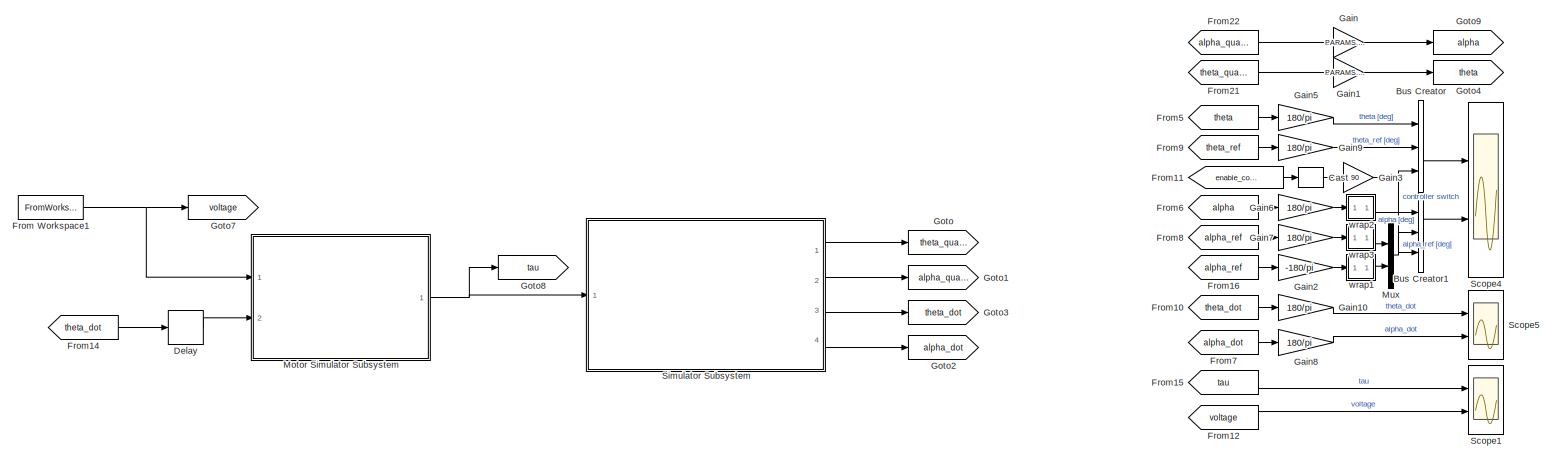
[diagram: root canvas - part 1/2, full width, middle band]
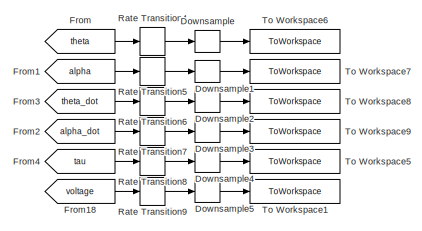
[diagram: root canvas - part 2/2, bottom right region]
MODEL slx_57cc78712e20
KIND model
CONFIG AbsTol = auto
CONFIG EnableMultiTasking = off
CONFIG FixedStep = dt
CONFIG MaxStep = auto
CONFIG MinStep = auto
CONFIG RelTol = 1e-3
CONFIG SampleTimeConstraint = Unconstrained
CONFIG Solver = ode1
CONFIG SolverName = ode1
CONFIG StartTime = 0.0
CONFIG StopTime = T_sim
BLOCK [BusCreator] Bus Creator
  Commented = on
  DisplayOption = bar
  InheritFromInputs = on
  Inputs = 3
  Ports = [3, 1]
BLOCK [BusCreator] Bus Creator1
  Commented = on
  DisplayOption = bar
  InheritFromInputs = on
  Inputs = 3
  Ports = [3, 1]
BLOCK [DataTypeConversion] Cast
  Commented = on
  OutDataTypeStr = double
  RndMeth = Floor
  SaturateOnIntegerOverflow = off
BLOCK [Delay] Delay
  DelayLength = 1
  InitialCondition = PARAMS.th_dot_0
  InputPortMap = u0
  Ports = [1, 1]
BLOCK [DownSample] Downsample
  InputProcessing = Elements as channels (sample based)
  N = ceil((2e-3)/dt)
  RateOptions = Allow multirate processing
BLOCK [DownSample] Downsample1
  InputProcessing = Elements as channels (sample based)
  N = ceil((2e-3)/dt)
  RateOptions = Allow multirate processing
BLOCK [DownSample] Downsample2
  InputProcessing = Elements as channels (sample based)
  N = ceil((2e-3)/dt)
  RateOptions = Allow multirate processing
BLOCK [DownSample] Downsample3
  InputProcessing = Elements as channels (sample based)
  N = ceil((2e-3)/dt)
  RateOptions = Allow multirate processing
BLOCK [DownSample] Downsample4
  InputProcessing = Elements as channels (sample based)
  N = ceil((2e-3)/dt)
  RateOptions = Allow multirate processing
BLOCK [DownSample] Downsample5
  InputProcessing = Elements as channels (sample based)
  N = ceil((2e-3)/dt)
  RateOptions = Allow multirate processing
BLOCK [From] From
  GotoTag = theta
BLOCK [FromWorkspace] From Workspace1
  SampleTime = 0
  VariableName = simin.voltage
  ZeroCross = on
BLOCK [From] From1
  GotoTag = alpha
BLOCK [From] From10
  Commented = on
  GotoTag = theta_dot
BLOCK [From] From11
  Commented = on
  GotoTag = enable_controller
BLOCK [From] From12
  Commented = on
  GotoTag = voltage
BLOCK [From] From14
  GotoTag = theta_dot
BLOCK [From] From15
  Commented = on
  GotoTag = tau
BLOCK [From] From16
  Commented = on
  GotoTag = alpha_ref
BLOCK [From] From18
  GotoTag = voltage
BLOCK [From] From2
  GotoTag = alpha_dot
BLOCK [From] From21
  GotoTag = theta_quant
BLOCK [From] From22
  GotoTag = alpha_quant
BLOCK [From] From3
  GotoTag = theta_dot
BLOCK [From] From4
  GotoTag = tau
BLOCK [From] From5
  Commented = on
  GotoTag = theta
BLOCK [From] From6
  Commented = on
  GotoTag = alpha
BLOCK [From] From7
  Commented = on
  GotoTag = alpha_dot
BLOCK [From] From8
  Commented = on
  GotoTag = alpha_ref
BLOCK [From] From9
  Commented = on
  GotoTag = theta_ref
BLOCK [Gain] Gain
  Gain = PARAMS.angle_quantization
  OutDataTypeStr = Inherit: Inherit via internal rule
  ParamDataTypeStr = Inherit: Inherit via internal rule
  SaturateOnIntegerOverflow = off
BLOCK [Gain] Gain1
  Gain = PARAMS.angle_quantization
  OutDataTypeStr = Inherit: Inherit via internal rule
  ParamDataTypeStr = Inherit: Inherit via internal rule
  SaturateOnIntegerOverflow = off
BLOCK [Gain] Gain10
  Commented = on
  Gain = 180/pi
  OutDataTypeStr = Inherit: Inherit via internal rule
  ParamDataTypeStr = Inherit: Inherit via internal rule
  SaturateOnIntegerOverflow = off
BLOCK [Gain] Gain2
  Commented = on
  Gain = -180/pi
  OutDataTypeStr = Inherit: Inherit via internal rule
  ParamDataTypeStr = Inherit: Inherit via internal rule
  SaturateOnIntegerOverflow = off
BLOCK [Gain] Gain3
  Commented = on
  Gain = 90
  OutDataTypeStr = Inherit: Inherit via internal rule
  ParamDataTypeStr = Inherit: Inherit via internal rule
  SaturateOnIntegerOverflow = off
BLOCK [Gain] Gain5
  Commented = on
  Gain = 180/pi
  OutDataTypeStr = Inherit: Inherit via internal rule
  ParamDataTypeStr = Inherit: Inherit via internal rule
  SaturateOnIntegerOverflow = off
BLOCK [Gain] Gain6
  Commented = on
  Gain = 180/pi
  OutDataTypeStr = Inherit: Inherit via internal rule
  ParamDataTypeStr = Inherit: Inherit via internal rule
  SaturateOnIntegerOverflow = off
BLOCK [Gain] Gain7
  Commented = on
  Gain = 180/pi
  OutDataTypeStr = Inherit: Inherit via internal rule
  ParamDataTypeStr = Inherit: Inherit via internal rule
  SaturateOnIntegerOverflow = off
BLOCK [Gain] Gain8
  Commented = on
  Gain = 180/pi
  OutDataTypeStr = Inherit: Inherit via internal rule
  ParamDataTypeStr = Inherit: Inherit via internal rule
  SaturateOnIntegerOverflow = off
BLOCK [Gain] Gain9
  Commented = on
  Gain = 180/pi
  OutDataTypeStr = Inherit: Inherit via internal rule
  ParamDataTypeStr = Inherit: Inherit via internal rule
  SaturateOnIntegerOverflow = off
BLOCK [Goto] Goto
  GotoTag = theta_quant
BLOCK [Goto] Goto1
  GotoTag = alpha_quant
BLOCK [Goto] Goto2
  GotoTag = alpha_dot
BLOCK [Goto] Goto3
  GotoTag = theta_dot
BLOCK [Goto] Goto4
  GotoTag = theta
BLOCK [Goto] Goto7
  GotoTag = voltage
BLOCK [Goto] Goto8
  GotoTag = tau
BLOCK [Goto] Goto9
  GotoTag = alpha
BLOCK [SubSystem] Motor Simulator Subsystem
  Ports = [2, 1]
  ReferencedSubsystem = s0303_motor_simulator
  RequestExecContextInheritance = off
  i_0 = 0
  omega_0 = PARAMS.th_dot_0
BLOCK [Mux] Mux
  Commented = on
  DisplayOption = bar
  Inputs = 2
  Ports = [2, 1]
BLOCK [RateTransition] Rate Transition4
  OutPortSampleTime = dt
BLOCK [RateTransition] Rate Transition5
  OutPortSampleTime = dt
BLOCK [RateTransition] Rate Transition6
  OutPortSampleTime = dt
BLOCK [RateTransition] Rate Transition7
  OutPortSampleTime = dt
BLOCK [RateTransition] Rate Transition8
  OutPortSampleTime = dt
BLOCK [RateTransition] Rate Transition9
  OutPortSampleTime = dt
BLOCK [Scope] Scope1
  Commented = on
  Floating = off
  NumInputPorts = 2
  Ports = [2]
  ScopeSpecificationString = Simulink.scopes.TimeScopeBlockCfg('CurrentConfiguration', extmgr.ConfigurationSet(extmgr.Configuration('Core','General UI',true),extmgr.Configuration('Core','Source UI',true),extmgr.Configuration('Sources','WiredSimulink',true),extmgr.Configuration('Visuals','Time Domain',true,'SerializedDisplays',{struct('MinYLimReal','-0.0275','MaxYLimReal','0.0275','YLabelReal','','MinYLimMag','0.00000','MaxYLi...<+1990ch>
BLOCK [Scope] Scope4
  Commented = on
  Floating = off
  NumInputPorts = 2
  Ports = [2]
  ScopeSpecificationString = Simulink.scopes.TimeScopeBlockCfg('CurrentConfiguration', extmgr.ConfigurationSet(extmgr.Configuration('Core','General UI',true),extmgr.Configuration('Core','Source UI',true),extmgr.Configuration('Sources','WiredSimulink',true,'DataLoggingVariableName','ScopeData3'),extmgr.Configuration('Visuals','Time Domain',true,'SerializedDisplays',{struct('MinYLimReal','-168.64225','MaxYLimReal','168.64225','...<+2296ch>
BLOCK [Scope] Scope5
  Commented = on
  Floating = off
  NumInputPorts = 2
  Ports = [2]
  ScopeSpecificationString = Simulink.scopes.TimeScopeBlockCfg('CurrentConfiguration', extmgr.ConfigurationSet(extmgr.Configuration('Core','General UI',true),extmgr.Configuration('Core','Source UI',true),extmgr.Configuration('Sources','WiredSimulink',true,'DataLoggingVariableName','ScopeData4'),extmgr.Configuration('Visuals','Time Domain',true,'SerializedDisplays',{struct('MinYLimReal','-1919.74246','MaxYLimReal','1735.47087'...<+2057ch>
BLOCK [SubSystem] Simulator Subsystem
  Ports = [1, 4]
  ReferencedSubsystem = s0405_mechanical_simulator
  RequestExecContextInheritance = off
  al_0 = PARAMS.al_0
  al_dot_0 = PARAMS.al_dot_0
  th_0 = PARAMS.th_0
  th_dot_0 = PARAMS.th_dot_0
BLOCK [ToWorkspace] To Workspace1
  FixptAsFi = on
  MaxDataPoints = inf
  Ports = [1]
  SampleTime = -1
  SaveFormat = Timeseries
  VariableName = voltage
BLOCK [ToWorkspace] To Workspace5
  FixptAsFi = on
  MaxDataPoints = inf
  Ports = [1]
  SampleTime = -1
  SaveFormat = Timeseries
  VariableName = tau
BLOCK [ToWorkspace] To Workspace6
  FixptAsFi = on
  MaxDataPoints = inf
  Ports = [1]
  SampleTime = -1
  SaveFormat = Timeseries
  VariableName = theta
BLOCK [ToWorkspace] To Workspace7
  FixptAsFi = on
  MaxDataPoints = inf
  Ports = [1]
  SampleTime = -1
  SaveFormat = Timeseries
  VariableName = alpha
BLOCK [ToWorkspace] To Workspace8
  FixptAsFi = on
  MaxDataPoints = inf
  Ports = [1]
  SampleTime = -1
  SaveFormat = Timeseries
  VariableName = theta_dot
BLOCK [ToWorkspace] To Workspace9
  FixptAsFi = on
  MaxDataPoints = inf
  Ports = [1]
  SampleTime = -1
  SaveFormat = Timeseries
  VariableName = alpha_dot
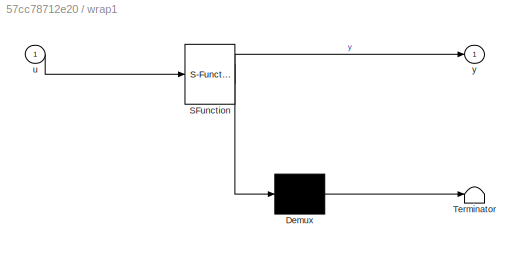
BLOCK [SubSystem] wrap1
  Commented = on
  ErrorFcn = Stateflow.Translate.translate
  PermitHierarchicalResolution = ExplicitOnly
  Ports = [1, 1]
  RequestExecContextInheritance = off
  SFBlockType = MATLAB Function
  TreatAsAtomicUnit = on
BLOCK [Demux] wrap1/ Demux 
  DisplayOption = bar
  Outputs = 1
  Ports = [1, 1]
BLOCK [S-Function] wrap1/ SFunction 
  EnableBusSupport = on
  FunctionName = sf_sfun
  PortCounts = [1 2]
  Ports = [1, 2]
  SFcnIsStateOwnerBlock = off
  SFunctionDeploymentMode = off
  Tag = Stateflow S-Function 7
BLOCK [Terminator] wrap1/ Terminator 
BLOCK [Inport] wrap1/u
  IconDisplay = Port number
BLOCK [Outport] wrap1/y
  IconDisplay = Port number
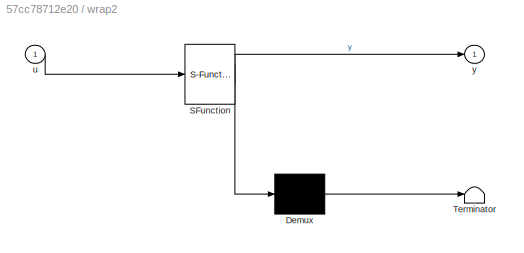
BLOCK [SubSystem] wrap2
  Commented = on
  ErrorFcn = Stateflow.Translate.translate
  PermitHierarchicalResolution = ExplicitOnly
  Ports = [1, 1]
  RequestExecContextInheritance = off
  SFBlockType = MATLAB Function
  TreatAsAtomicUnit = on
BLOCK [Demux] wrap2/ Demux 
  DisplayOption = bar
  Outputs = 1
  Ports = [1, 1]
BLOCK [S-Function] wrap2/ SFunction 
  EnableBusSupport = on
  FunctionName = sf_sfun
  PortCounts = [1 2]
  Ports = [1, 2]
  SFcnIsStateOwnerBlock = off
  SFunctionDeploymentMode = off
  Tag = Stateflow S-Function 4
BLOCK [Terminator] wrap2/ Terminator 
BLOCK [Inport] wrap2/u
  IconDisplay = Port number
BLOCK [Outport] wrap2/y
  IconDisplay = Port number
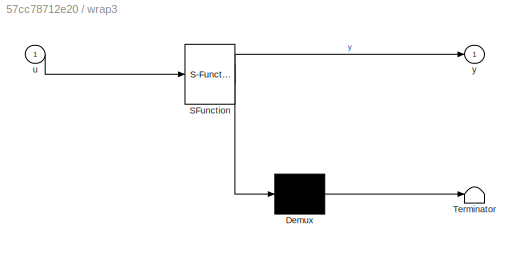
BLOCK [SubSystem] wrap3
  Commented = on
  ErrorFcn = Stateflow.Translate.translate
  PermitHierarchicalResolution = ExplicitOnly
  Ports = [1, 1]
  RequestExecContextInheritance = off
  SFBlockType = MATLAB Function
  TreatAsAtomicUnit = on
BLOCK [Demux] wrap3/ Demux 
  DisplayOption = bar
  Outputs = 1
  Ports = [1, 1]
BLOCK [S-Function] wrap3/ SFunction 
  EnableBusSupport = on
  FunctionName = sf_sfun
  PortCounts = [1 2]
  Ports = [1, 2]
  SFcnIsStateOwnerBlock = off
  SFunctionDeploymentMode = off
  Tag = Stateflow S-Function 5
BLOCK [Terminator] wrap3/ Terminator 
BLOCK [Inport] wrap3/u
  IconDisplay = Port number
BLOCK [Outport] wrap3/y
  IconDisplay = Port number
LINE Bus Creator1:1 -> Scope4:2
LINE Bus Creator:1 -> Scope4:1
LINE Cast:1 -> Gain3:1
LINE Delay:1 -> Motor Simulator Subsystem:2
LINE Downsample1:1 -> To Workspace7:1
LINE Downsample2:1 -> To Workspace8:1
LINE Downsample3:1 -> To Workspace9:1
LINE Downsample4:1 -> To Workspace5:1
LINE Downsample5:1 -> To Workspace1:1
LINE Downsample:1 -> To Workspace6:1
NET From Workspace1:1 -> Goto7:1, Motor Simulator Subsystem:1
LINE From10:1 -> Gain10:1
LINE From11:1 -> Cast:1
LINE From12:1 -> Scope1:2
LINE From14:1 -> Delay:1
LINE From15:1 -> Scope1:1
LINE From16:1 -> Gain2:1
LINE From18:1 -> Rate Transition9:1
LINE From1:1 -> Rate Transition5:1
LINE From21:1 -> Gain1:1
LINE From22:1 -> Gain:1
LINE From2:1 -> Rate Transition7:1
LINE From3:1 -> Rate Transition6:1
LINE From4:1 -> Rate Transition8:1
LINE From5:1 -> Gain5:1
LINE From6:1 -> Gain6:1
LINE From7:1 -> Gain8:1
LINE From8:1 -> Gain7:1
LINE From9:1 -> Gain9:1
LINE From:1 -> Rate Transition4:1
LINE Gain10:1 -> Scope5:1
LINE Gain1:1 -> Goto4:1
LINE Gain2:1 -> wrap1:1
NET Gain3:1 -> Bus Creator1:3, Bus Creator:3
LINE Gain5:1 -> Bus Creator:1
LINE Gain6:1 -> wrap2:1
LINE Gain7:1 -> wrap3:1
LINE Gain8:1 -> Scope5:2
LINE Gain9:1 -> Bus Creator:2
LINE Gain:1 -> Goto9:1
NET Motor Simulator Subsystem:1 -> Goto8:1, Simulator Subsystem:1
LINE Mux:1 -> Bus Creator1:2
LINE Rate Transition4:1 -> Downsample:1
LINE Rate Transition5:1 -> Downsample1:1
LINE Rate Transition6:1 -> Downsample2:1
LINE Rate Transition7:1 -> Downsample3:1
LINE Rate Transition8:1 -> Downsample4:1
LINE Rate Transition9:1 -> Downsample5:1
LINE Simulator Subsystem:1 -> Goto:1
LINE Simulator Subsystem:2 -> Goto1:1
LINE Simulator Subsystem:3 -> Goto3:1
LINE Simulator Subsystem:4 -> Goto2:1
LINE wrap1:1 -> Mux:2
LINE wrap2:1 -> Bus Creator1:1
LINE wrap3:1 -> Mux:1
note: NET lines group one-source signal fan-out (src -> all destinations, sorted); 1:1 wires keep LINE
CHART wrap2 states=1 transitions=1
  STATE_LABEL 'eML_blk_kernel()'
  STATE_LABEL 'SCRIPT:\nfunction y = wrap(u)\nstop_condition = false;\ny = u;\nwhile ~stop_condition\n    if y > 270\n        y = y - 360;\n    elseif y < -270\n        y = y + 360;\n    else\n        stop_condition = true;\n    end\nend\n    '  <repeated x3 — deduplicated; at blocks: wrap2, wrap3, wrap1>
CHART wrap3 states=1 transitions=1
  STATE_LABEL 'eML_blk_kernel()'
CHART wrap1 states=1 transitions=1
  STATE_LABEL 'eML_blk_kernel()'
